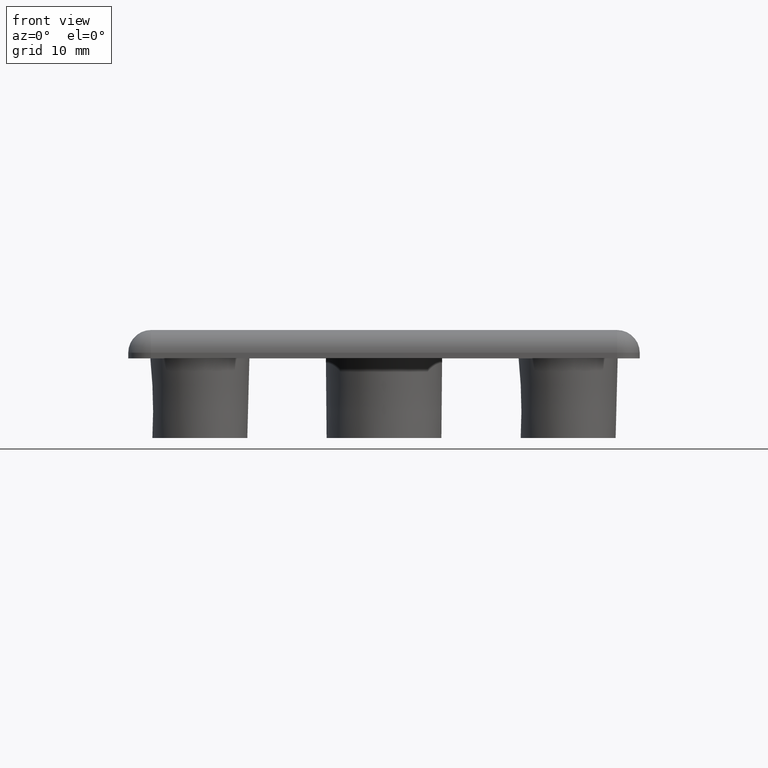
[diagram: clean part render]
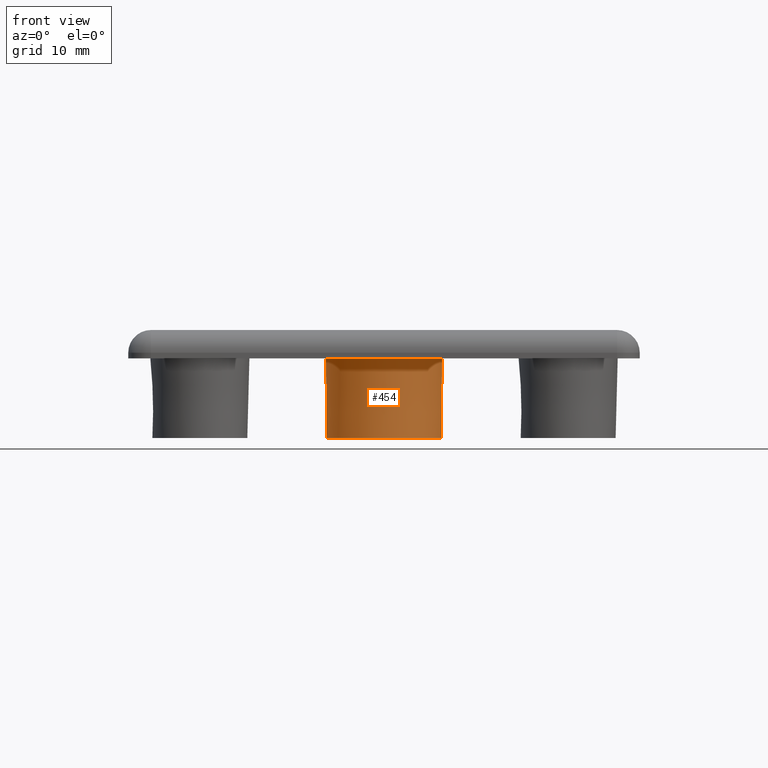
[diagram: same view with one face highlighted and labeled with its STEP entity id]
A machine part, front view. The second image highlights one B-rep face of the part: STEP entity #454.
In plain terms, the highlighted conical surface has half-angle 0.5 deg.
Its self-contained STEP definition (entity closure, byte-faithful):
#84=FACE_BOUND('',#144,.T.);
#104=FACE_OUTER_BOUND('',#143,.T.);
#143=EDGE_LOOP('',(#333));
#144=EDGE_LOOP('',(#334));
#201=CIRCLE('',#497,5.05);
#202=CIRCLE('',#498,5.11108807453531);
#237=VERTEX_POINT('',#744);
#238=VERTEX_POINT('',#746);
#277=EDGE_CURVE('',#237,#237,#201,.T.);
#278=EDGE_CURVE('',#238,#238,#202,.T.);
#333=ORIENTED_EDGE('',*,*,#277,.F.);
#334=ORIENTED_EDGE('',*,*,#278,.F.);
#444=CONICAL_SURFACE('',#496,5.05,0.5);
#454=ADVANCED_FACE('',(#104,#84),#444,.T.);
#496=AXIS2_PLACEMENT_3D('',#743,#575,#576);
#497=AXIS2_PLACEMENT_3D('',#745,#577,#578);
#498=AXIS2_PLACEMENT_3D('',#747,#579,#580);
#575=DIRECTION('center_axis',(0.,0.,1.));
#576=DIRECTION('ref_axis',(-1.,0.,0.));
#577=DIRECTION('center_axis',(0.,0.,-1.));
#578=DIRECTION('ref_axis',(-1.,0.,0.));
#579=DIRECTION('center_axis',(0.,0.,1.));
#580=DIRECTION('ref_axis',(-1.,0.,0.));
#743=CARTESIAN_POINT('Origin',(0.,0.,-7.));
#744=CARTESIAN_POINT('',(5.05,6.18446633569413E-16,-7.));
#745=CARTESIAN_POINT('Origin',(0.,0.,-7.));
#746=CARTESIAN_POINT('',(5.11108807453531,6.25927765063988E-16,0.));
#747=CARTESIAN_POINT('Origin',(0.,0.,0.));